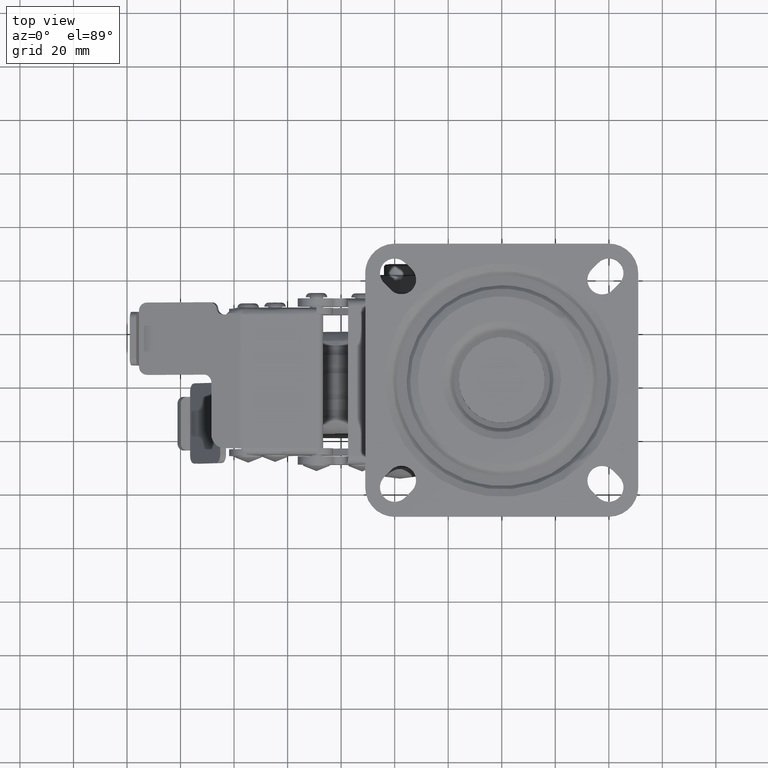
[diagram: clean part render]
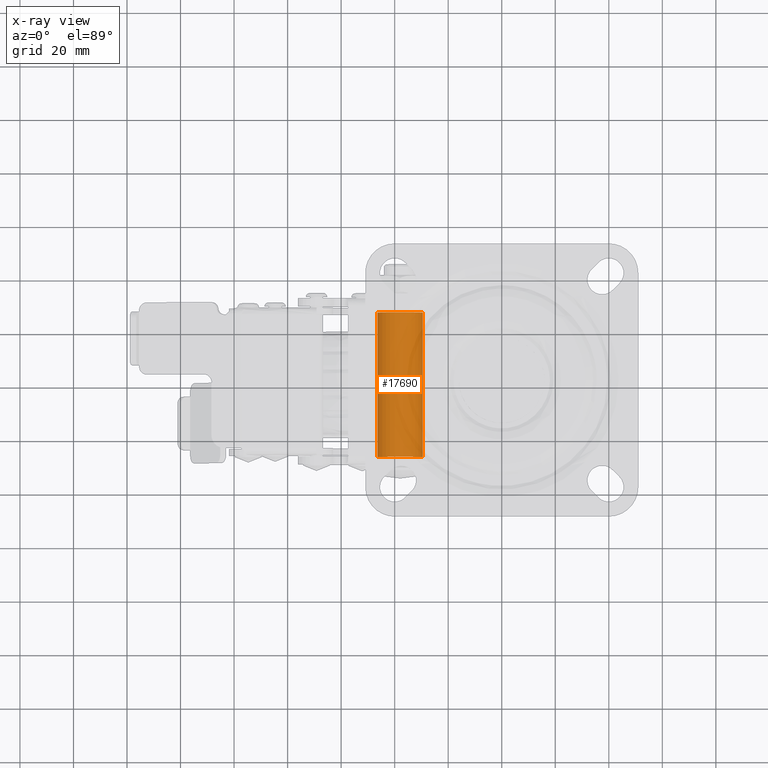
[diagram: x-ray — body ghosted, one internal face saturated and labeled with its STEP entity id]
A machine part, top view, then the same camera in x-ray: the body is ghosted and one INTERNAL B-rep face — a face not visible from any outside direction — is saturated and labeled: STEP entity #17690.
In plain terms, the highlighted face is a freeform B-spline surface patch.
Its self-contained STEP definition (entity closure, byte-faithful):
#17557=CARTESIAN_POINT('',(-38.000026702880859,-27.0,-96.999954447265395));
#17558=VERTEX_POINT('',#17557);
#17559=CARTESIAN_POINT('',(-46.484172489433639,-27.0,-104.981041860676400));
#17560=VERTEX_POINT('',#17559);
#17561=CARTESIAN_POINT('',(-38.000026702880859,-27.0,-96.999954447265395));
#17562=CARTESIAN_POINT('',(-45.996028271066827,-26.999999999999996,-96.999954447265409));
#17563=CARTESIAN_POINT('',(-46.484172489433639,-27.0,-104.981041860676370));
#17571=(BOUNDED_CURVE()B_SPLINE_CURVE(2,(#17561,#17562,#17563),.UNSPECIFIED.,.F.,.U.)B_SPLINE_CURVE_WITH_KNOTS((3,3),(0.500000000000000,0.739332962230929),.UNSPECIFIED.)CURVE()GEOMETRIC_REPRESENTATION_ITEM()RATIONAL_B_SPLINE_CURVE((1.0,0.719603993296099,0.976072041649542))REPRESENTATION_ITEM(''));
#17572=EDGE_CURVE('',#17558,#17560,#17571,.T.);
#17574=CARTESIAN_POINT('',(-29.515880916328079,-27.0,-106.018867033854600));
#17575=VERTEX_POINT('',#17574);
#17576=CARTESIAN_POINT('',(-29.515880916328083,-27.0,-106.018867033854630));
#17577=CARTESIAN_POINT('',(-29.500026702880753,-27.0,-105.759652935575670));
#17578=CARTESIAN_POINT('',(-29.500026702880749,-27.0,-105.499954447265490));
#17579=CARTESIAN_POINT('',(-29.500026702880749,-27.000000000000011,-96.999954447265395));
#17580=CARTESIAN_POINT('',(-38.000026702880859,-27.0,-96.999954447265395));
#17588=(BOUNDED_CURVE()B_SPLINE_CURVE(2,(#17576,#17577,#17578,#17579,#17580),.UNSPECIFIED.,.F.,.U.)B_SPLINE_CURVE_WITH_KNOTS((3,2,3),(0.239332962230929,0.250000000000000,0.500000000000000),.UNSPECIFIED.)CURVE()GEOMETRIC_REPRESENTATION_ITEM()RATIONAL_B_SPLINE_CURVE((0.976072041649542,0.987502787890448,1.0,0.707106781186548,1.0))REPRESENTATION_ITEM(''));
#17589=EDGE_CURVE('',#17575,#17558,#17588,.T.);
#17624=CARTESIAN_POINT('',(-29.515880916294879,28.350000000000009,-106.018867033311810));
#17625=CARTESIAN_POINT('',(-28.996968330248592,28.350000000000009,-97.534721246725823));
#17626=CARTESIAN_POINT('',(-37.481114116834569,28.350000000000009,-97.015808660679539));
#17627=CARTESIAN_POINT('',(-45.965259903420545,28.350000000000009,-96.496896074633241));
#17628=CARTESIAN_POINT('',(-46.484172489466843,28.350000000000009,-104.981041861219200));
#17629=CARTESIAN_POINT('',(-29.515880916294879,-28.383749999999999,-106.018867033311810));
#17630=CARTESIAN_POINT('',(-28.996968330248592,-28.383749999999999,-97.534721246725823));
#17631=CARTESIAN_POINT('',(-37.481114116834569,-28.383749999999999,-97.015808660679539));
#17632=CARTESIAN_POINT('',(-45.965259903420545,-28.383749999999999,-96.496896074633241));
#17633=CARTESIAN_POINT('',(-46.484172489466843,-28.383749999999999,-104.981041861219200));
#17641=(BOUNDED_SURFACE()B_SPLINE_SURFACE(2,1,((#17624,#17629),(#17625,#17630),(#17626,#17631),(#17627,#17632),(#17628,#17633)),.UNSPECIFIED.,.F.,.F.,.U.)B_SPLINE_SURFACE_WITH_KNOTS((3,2,3),(2,2),(0.0,14.083261120685410,28.166522241370831),(0.0,56.733750000000022),.UNSPECIFIED.)GEOMETRIC_REPRESENTATION_ITEM()RATIONAL_B_SPLINE_SURFACE(((1.0,1.0),(0.707106781186548,0.707106781186548),(1.0,1.0),(0.707106781186548,0.707106781186548),(1.0,1.0)))REPRESENTATION_ITEM('')SURFACE());
#17642=CARTESIAN_POINT('',(-29.515880916328079,27.0,-106.018867033854600));
#17643=VERTEX_POINT('',#17642);
#17644=CARTESIAN_POINT('',(-38.000026702880859,27.0,-96.999954447265395));
#17645=VERTEX_POINT('',#17644);
#17646=CARTESIAN_POINT('',(-29.515880916328076,27.000000000000007,-106.018867033854660));
#17647=CARTESIAN_POINT('',(-29.500026702880746,27.000000000000004,-105.759652935575690));
#17648=CARTESIAN_POINT('',(-29.500026702880749,27.0,-105.499954447265490));
#17649=CARTESIAN_POINT('',(-29.500026702880749,27.000000000000011,-96.999954447265395));
#17650=CARTESIAN_POINT('',(-38.000026702880859,27.0,-96.999954447265395));
#17658=(BOUNDED_CURVE()B_SPLINE_CURVE(2,(#17646,#17647,#17648,#17649,#17650),.UNSPECIFIED.,.F.,.U.)B_SPLINE_CURVE_WITH_KNOTS((3,2,3),(0.239332962230929,0.250000000000000,0.500000000000000),.UNSPECIFIED.)CURVE()GEOMETRIC_REPRESENTATION_ITEM()RATIONAL_B_SPLINE_CURVE((0.976072041649542,0.987502787890448,1.0,0.707106781186548,1.0))REPRESENTATION_ITEM(''));
#17659=EDGE_CURVE('',#17643,#17645,#17658,.T.);
#17660=ORIENTED_EDGE('',*,*,#17659,.F.);
#17661=CARTESIAN_POINT('',(-29.515880916328079,27.0,-106.018867033854600));
#17662=CARTESIAN_POINT('',(-29.515880916328079,-27.0,-106.018867033854600));
#17663=QUASI_UNIFORM_CURVE('',1,(#17661,#17662),.UNSPECIFIED.,.F.,.U.);
#17664=EDGE_CURVE('',#17643,#17575,#17663,.T.);
#17665=ORIENTED_EDGE('',*,*,#17664,.T.);
#17666=ORIENTED_EDGE('',*,*,#17589,.T.);
#17667=ORIENTED_EDGE('',*,*,#17572,.T.);
#17668=CARTESIAN_POINT('',(-46.484172489433639,27.0,-104.981041860676400));
#17669=VERTEX_POINT('',#17668);
#17670=CARTESIAN_POINT('',(-46.484172489433639,27.0,-104.981041860676400));
#17671=CARTESIAN_POINT('',(-46.484172489433639,-27.0,-104.981041860676400));
#17672=QUASI_UNIFORM_CURVE('',1,(#17670,#17671),.UNSPECIFIED.,.F.,.U.);
#17673=EDGE_CURVE('',#17669,#17560,#17672,.T.);
#17674=ORIENTED_EDGE('',*,*,#17673,.F.);
#17675=CARTESIAN_POINT('',(-38.000026702880859,27.0,-96.999954447265395));
#17676=CARTESIAN_POINT('',(-45.996028271066827,26.999999999999996,-96.999954447265409));
#17677=CARTESIAN_POINT('',(-46.484172489433639,27.0,-104.981041860676370));
#17685=(BOUNDED_CURVE()B_SPLINE_CURVE(2,(#17675,#17676,#17677),.UNSPECIFIED.,.F.,.U.)B_SPLINE_CURVE_WITH_KNOTS((3,3),(0.500000000000000,0.739332962230929),.UNSPECIFIED.)CURVE()GEOMETRIC_REPRESENTATION_ITEM()RATIONAL_B_SPLINE_CURVE((1.0,0.719603993296099,0.976072041649542))REPRESENTATION_ITEM(''));
#17686=EDGE_CURVE('',#17645,#17669,#17685,.T.);
#17687=ORIENTED_EDGE('',*,*,#17686,.F.);
#17688=EDGE_LOOP('',(#17660,#17665,#17666,#17667,#17674,#17687));
#17689=FACE_OUTER_BOUND('',#17688,.T.);
#17690=ADVANCED_FACE('',(#17689),#17641,.F.);